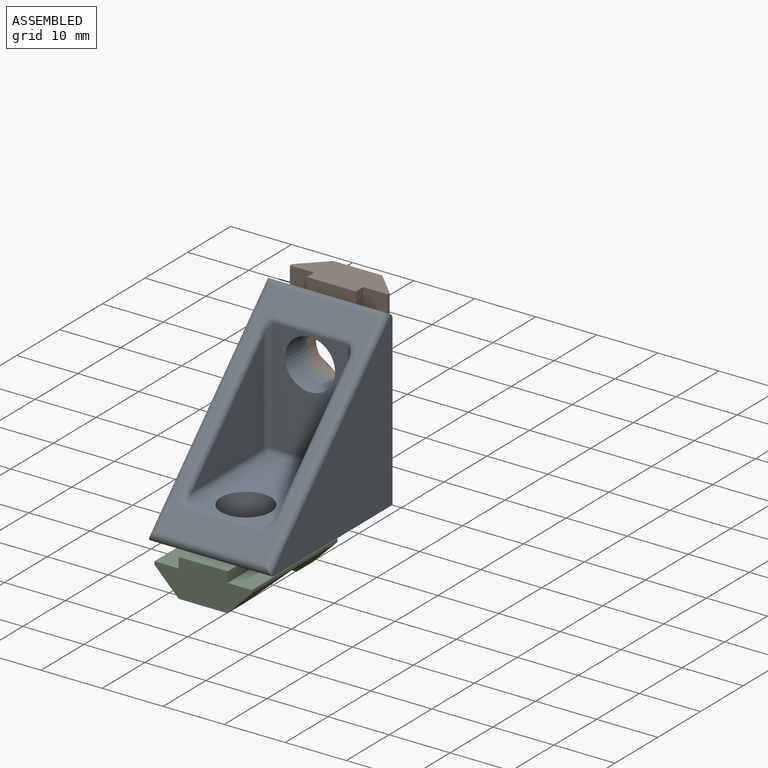
[diagram: assembled view]
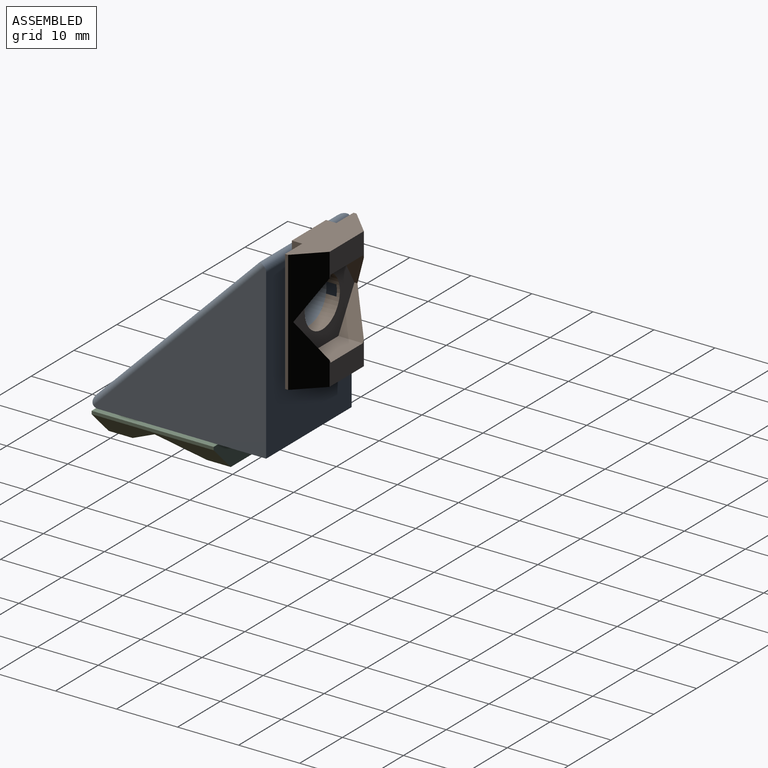
[diagram: assembled view, second angle]
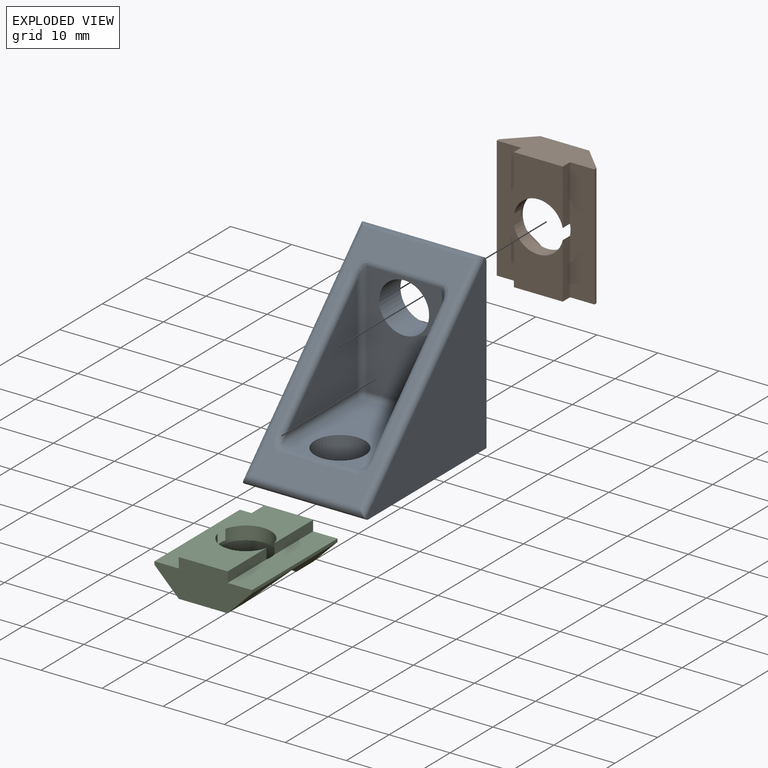
[diagram: exploded view]
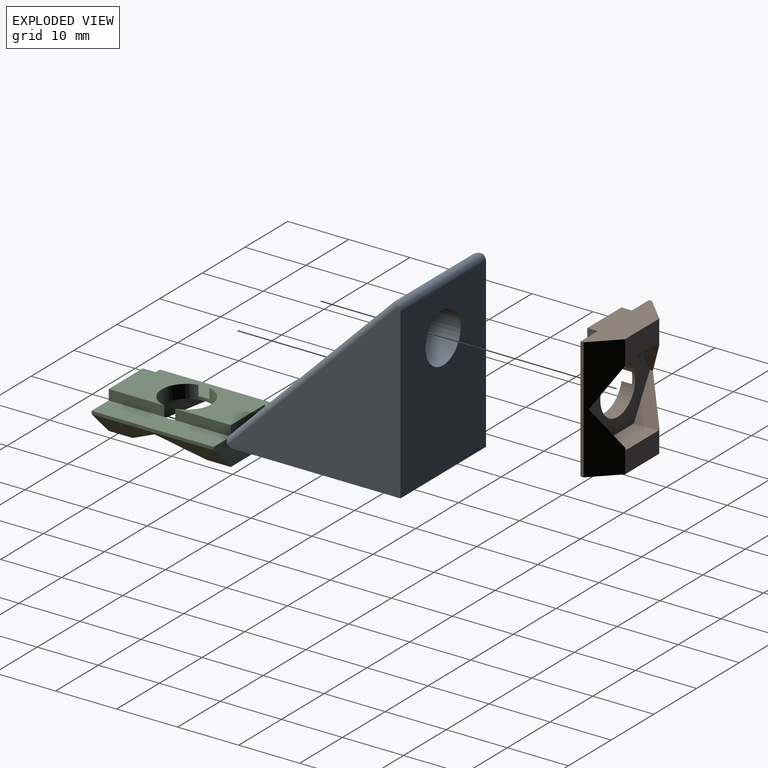
[diagram: exploded view, second angle]
ASSEMBLY  parts=3 mates=2
PART A: 30 faces, bbox 29x20x29 mm
  f0: plane 27.59x20mm, normal (-1,0,0), area 498.9mm2, adj f1,f2,f4,f6,f28
  f1: plane 28.29x28.29mm, normal (0,-1,0), area 408.4mm2, adj f0,f4,f27,f28,f29
  f2: plane 28.29x28.29mm, normal (0,1,0), area 408.4mm2, adj f0,f4,f26,f27,f28
  f3: cylinder r=4.1mm len=8.2mm, axis (0,0,-1), area 128.8mm2, adj f4,f9
  f4: plane 27.59x20mm, normal (0,0,-1), area 498.9mm2, adj f0,f1,f2,f3,f27
  f5: plane 26.59x26.59mm, normal (0.71,0,0.71), area 215.8mm2, adj f13,f16,f17,f20,f21,f23,f24,f25
  f6: cylinder r=4.1mm len=8.2mm, axis (1,0,0), area 128.8mm2, adj f0,f7
  f7: plane 18.59x12mm, normal (1,0,0), area 170.2mm2, adj f6,f12,f15,f19,f20
  f8: plane 16.59x16.59mm, normal (0,-1,0), area 137.5mm2, adj f19,f22,f25
  f9: plane 18.59x12mm, normal (0,0,1), area 170.2mm2, adj f3,f14,f15,f21,f22
  f10: plane 16.59x16.59mm, normal (0,1,0), area 137.5mm2, adj f12,f13,f14
  f11: sphere r=1mm, area 1.6mm2, adj f12,f14,f15
  f12: cylinder r=1mm len=18.59mm, axis (0,0,1), area 28.1mm2, adj f7,f10,f11,f16
  f13: cylinder r=1mm len=17.29mm, axis (-0.71,0,0.71), area 36.8mm2, adj f5,f10,f16,f17
  f14: cylinder r=1mm len=18.59mm, axis (-1,0,0), area 28.1mm2, adj f9,f10,f11,f17
  f15: cylinder r=1mm len=12mm, axis (0,-1,0), area 18.8mm2, adj f7,f9,f11,f18
  f16: bspline ~3.05x2.35mm, area 3.5mm2, adj f5,f12,f13,f20
  f17: bspline ~2.71x2mm, area 3.5mm2, adj f5,f13,f14,f21
  f18: sphere r=1mm, area 1.6mm2, adj f15,f19,f22
  f19: cylinder r=1mm len=18.59mm, axis (0,0,-1), area 28.1mm2, adj f7,f8,f18,f23
  f20: cylinder r=1mm len=12mm, axis (0,1,0), area 9.4mm2, adj f5,f7,f16,f23
  f21: cylinder r=1mm len=12mm, axis (0,-1,0), area 9.4mm2, adj f5,f9,f17,f24
  f22: cylinder r=1mm len=18.59mm, axis (1,0,0), area 28.1mm2, adj f8,f9,f18,f24
  f23: bspline ~2.71x2mm, area 3.5mm2, adj f5,f19,f20,f25
  f24: bspline ~3.05x2.35mm, area 3.5mm2, adj f5,f21,f22,f25
  f25: cylinder r=1mm len=17.29mm, axis (0.71,0,-0.71), area 36.8mm2, adj f5,f8,f23,f24
  f26: cylinder r=1mm len=28.71mm, axis (0.71,0,-0.71), area 61.1mm2, adj f2,f5,f27,f28
  f27: cylinder r=1mm len=20mm, axis (0,-1,0), area 46mm2, adj f1,f2,f4,f5,f26,f29
  f28: cylinder r=1mm len=20mm, axis (0,1,0), area 46mm2, adj f0,f1,f2,f5,f26,f29
  f29: cylinder r=1mm len=28.71mm, axis (0.71,0,-0.71), area 61.1mm2, adj f1,f5,f27,f28
PART B: 24 faces, bbox 16x20x6.2 mm
  f0: plane 20x0.5mm, normal (-1,0,0), area 10mm2, adj f2,f3,f17,f23
  f1: plane 20x0.5mm, normal (1,0,0), area 10mm2, adj f2,f3,f20,f22
  f2: plane 16x6.2mm, normal (0,1,0), area 69.6mm2, adj f0,f1,f7,f10,f16,f17,f19,f20
  f3: plane 16x6.2mm, normal (0,-1,0), area 69.6mm2, adj f0,f1,f6,f9,f17,f18,f20,f21
  f4: plane 6.5x4mm, normal (-0.87,-0.5,0), area 17.7mm2, adj f5,f7,f14,f15,f22
  f5: plane 6.5x4mm, normal (-0.87,0.5,0), area 17.7mm2, adj f4,f6,f11,f15,f22
  f6: plane 8x3.93mm, normal (0,0,-1), area 28.1mm2, adj f3,f5,f11,f12,f22,f23
  f7: plane 8x3.93mm, normal (0,0,-1), area 28.1mm2, adj f2,f4,f13,f14,f22,f23
  f8: cylinder r=4.1mm len=8.2mm, axis (0,0,-1), area 50.5mm2, adj f9,f10,f15,f16,f17,f18,f19,f20
  f9: plane 9.1x8mm, normal (0,0,1), area 53.7mm2, adj f3,f8,f18,f21
  f10: plane 9.1x8mm, normal (0,0,1), area 53.7mm2, adj f2,f8,f16,f19
  f11: plane 7.51x4mm, normal (0,1,0), area 30mm2, adj f5,f6,f12,f15
  f12: plane 6.5x4mm, normal (0.87,0.5,0), area 17.7mm2, adj f6,f11,f13,f15,f23
  f13: plane 6.5x4mm, normal (0.87,-0.5,0), area 17.7mm2, adj f7,f12,f14,f15,f23
  f14: plane 7.51x4mm, normal (0,-1,0), area 30mm2, adj f4,f7,f13,f15
  f15: plane 15.01x13mm, normal (0,0,-1), area 93.5mm2, adj f4,f5,f8,f11,f12,f13,f14
  f16: plane 9.1x1.7mm, normal (-1,0,0), area 15.5mm2, adj f2,f8,f10,f17
  f17: plane 20x4mm, normal (0,0,1), area 79.9mm2, adj f0,f2,f3,f8,f16,f18
  f18: plane 9.1x1.7mm, normal (-1,0,0), area 15.5mm2, adj f3,f8,f9,f17
  f19: plane 9.1x1.7mm, normal (1,0,0), area 15.5mm2, adj f2,f8,f10,f20
  f20: plane 20x4mm, normal (0,0,1), area 79.9mm2, adj f1,f2,f3,f8,f19,f21
  f21: plane 9.1x1.7mm, normal (1,0,0), area 15.5mm2, adj f3,f8,f9,f20
  f22: plane 20x4mm, normal (0.71,0,-0.71), area 83mm2, adj f1,f2,f3,f4,f5,f6,f7
  f23: plane 20x4mm, normal (-0.71,0,-0.71), area 83mm2, adj f0,f2,f3,f6,f7,f12,f13
PART C: same geometry as B
PLACE A rot(axis=(0.58,-0.58,0.58),120deg) t=(20.54,42.88,12.34)mm
PLACE B rot(axis=(1,0,0),90deg) t=(20.54,45.08,32.34)mm
PLACE C t=(20.54,22.88,10.14)mm
MATE fastened A.f3 <-> B.f8  axis (0,1,0) through (20.54,42.88,32.34)mm
MATE fastened A.f6 <-> C.f8  axis (0,0,-1) through (20.54,22.88,12.34)mm
